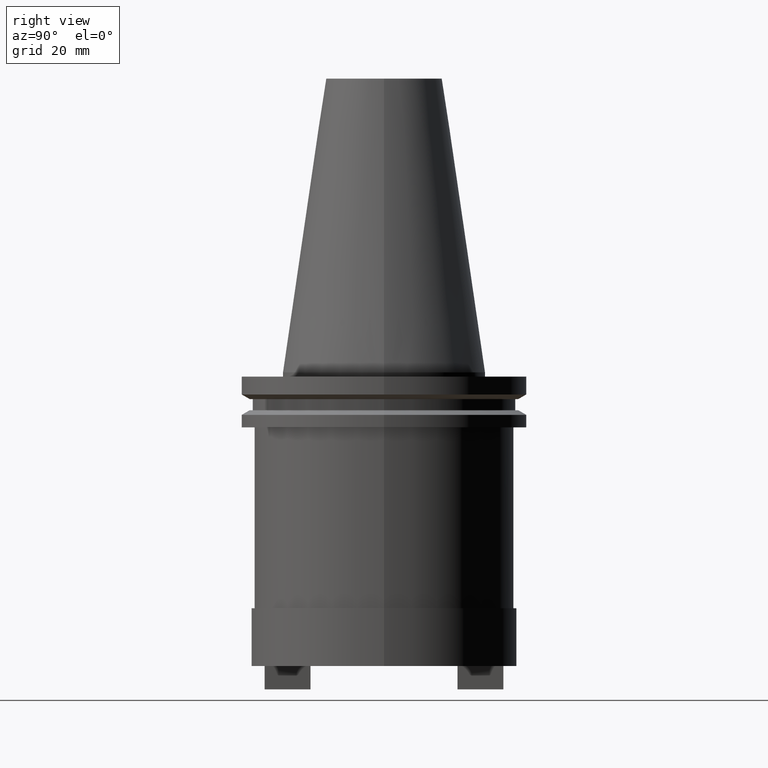
[diagram: clean part render]
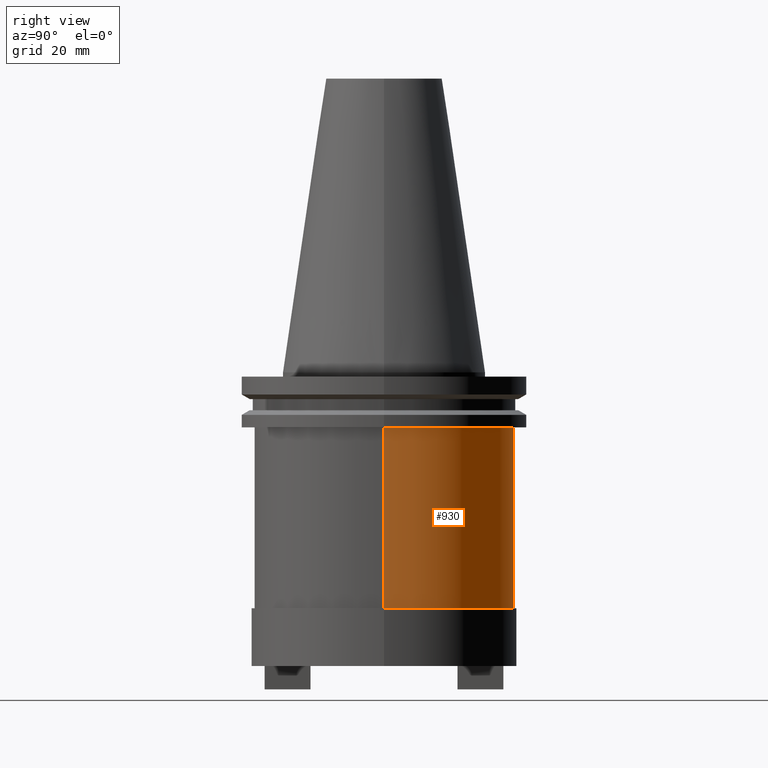
[diagram: same view with one face highlighted and labeled with its STEP entity id]
A machine part, right view. The second image highlights one B-rep face of the part: STEP entity #930.
In plain terms, the highlighted cylindrical surface (partial cylindrical patch) has radius 45 mm, axis along (-0, -0, 1).
Its self-contained STEP definition (entity closure, byte-faithful):
#33 = VERTEX_POINT ( 'NONE', #307 ) ;
#59 = CARTESIAN_POINT ( 'NONE',  ( -45.00000000000000000, 5.510910596163089556E-15, -81.59999999999999432 ) ) ;
#72 = LINE ( 'NONE', #333, #923 ) ;
#74 = CARTESIAN_POINT ( 'NONE',  ( 0.000000000000000000, 0.000000000000000000, -81.59999999999999432 ) ) ;
#110 = CARTESIAN_POINT ( 'NONE',  ( 45.00000000000000000, 0.000000000000000000, -81.59999999999999432 ) ) ;
#157 = VERTEX_POINT ( 'NONE', #110 ) ;
#179 = DIRECTION ( 'NONE',  ( -0.000000000000000000, -0.000000000000000000, 1.000000000000000000 ) ) ;
#243 = DIRECTION ( 'NONE',  ( -0.000000000000000000, -0.000000000000000000, 1.000000000000000000 ) ) ;
#255 = AXIS2_PLACEMENT_3D ( 'NONE', #74, #243, #582 ) ;
#283 = VECTOR ( 'NONE', #995, 1000.000000000000000 ) ;
#307 = CARTESIAN_POINT ( 'NONE',  ( -45.00000000000000000, 5.510910596163089556E-15, -19.04999999999998295 ) ) ;
#327 = DIRECTION ( 'NONE',  ( -0.000000000000000000, -0.000000000000000000, 1.000000000000000000 ) ) ;
#333 = CARTESIAN_POINT ( 'NONE',  ( -45.00000000000000000, 5.510910596163089556E-15, 101.5999999999999943 ) ) ;
#337 = CYLINDRICAL_SURFACE ( 'NONE', #890, 45.00000000000000000 ) ;
#431 = CARTESIAN_POINT ( 'NONE',  ( 45.00000000000000000, 0.000000000000000000, 101.5999999999999943 ) ) ;
#444 = AXIS2_PLACEMENT_3D ( 'NONE', #541, #452, #964 ) ;
#452 = DIRECTION ( 'NONE',  ( -0.000000000000000000, -0.000000000000000000, 1.000000000000000000 ) ) ;
#519 = CARTESIAN_POINT ( 'NONE',  ( 0.000000000000000000, 0.000000000000000000, 101.5999999999999943 ) ) ;
#541 = CARTESIAN_POINT ( 'NONE',  ( 0.000000000000000000, 0.000000000000000000, -19.04999999999998295 ) ) ;
#552 = EDGE_CURVE ( 'NONE', #157, #759, #808, .T. ) ;
#582 = DIRECTION ( 'NONE',  ( 1.000000000000000000, 0.000000000000000000, 0.000000000000000000 ) ) ;
#597 = EDGE_LOOP ( 'NONE', ( #799, #934, #991, #714 ) ) ;
#612 = EDGE_CURVE ( 'NONE', #633, #33, #938, .T. ) ;
#633 = VERTEX_POINT ( 'NONE', #710 ) ;
#692 = FACE_OUTER_BOUND ( 'NONE', #597, .T. ) ;
#710 = CARTESIAN_POINT ( 'NONE',  ( 45.00000000000000000, 0.000000000000000000, -19.04999999999998295 ) ) ;
#714 = ORIENTED_EDGE ( 'NONE', *, *, #907, .F. ) ;
#752 = DIRECTION ( 'NONE',  ( 1.000000000000000000, 0.000000000000000000, 0.000000000000000000 ) ) ;
#759 = VERTEX_POINT ( 'NONE', #59 ) ;
#799 = ORIENTED_EDGE ( 'NONE', *, *, #552, .T. ) ;
#808 = CIRCLE ( 'NONE', #255, 45.00000000000000000 ) ;
#810 = EDGE_CURVE ( 'NONE', #759, #33, #72, .T. ) ;
#890 = AXIS2_PLACEMENT_3D ( 'NONE', #519, #179, #752 ) ;
#907 = EDGE_CURVE ( 'NONE', #157, #633, #999, .T. ) ;
#923 = VECTOR ( 'NONE', #327, 1000.000000000000000 ) ;
#930 = ADVANCED_FACE ( 'NONE', ( #692 ), #337, .T. ) ;
#934 = ORIENTED_EDGE ( 'NONE', *, *, #810, .T. ) ;
#938 = CIRCLE ( 'NONE', #444, 45.00000000000000000 ) ;
#964 = DIRECTION ( 'NONE',  ( 1.000000000000000000, 0.000000000000000000, 0.000000000000000000 ) ) ;
#991 = ORIENTED_EDGE ( 'NONE', *, *, #612, .F. ) ;
#995 = DIRECTION ( 'NONE',  ( -0.000000000000000000, -0.000000000000000000, 1.000000000000000000 ) ) ;
#999 = LINE ( 'NONE', #431, #283 ) ;